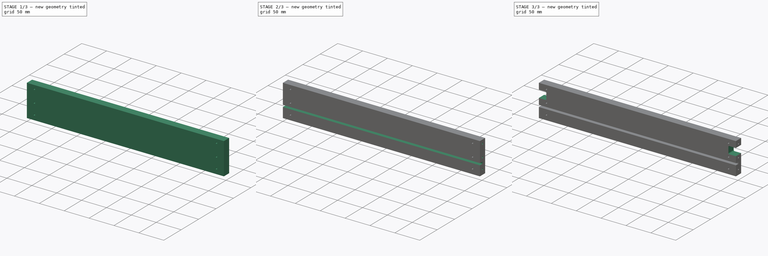
[diagram: build sequence overview — one tinted view per stage of 3, left to right]
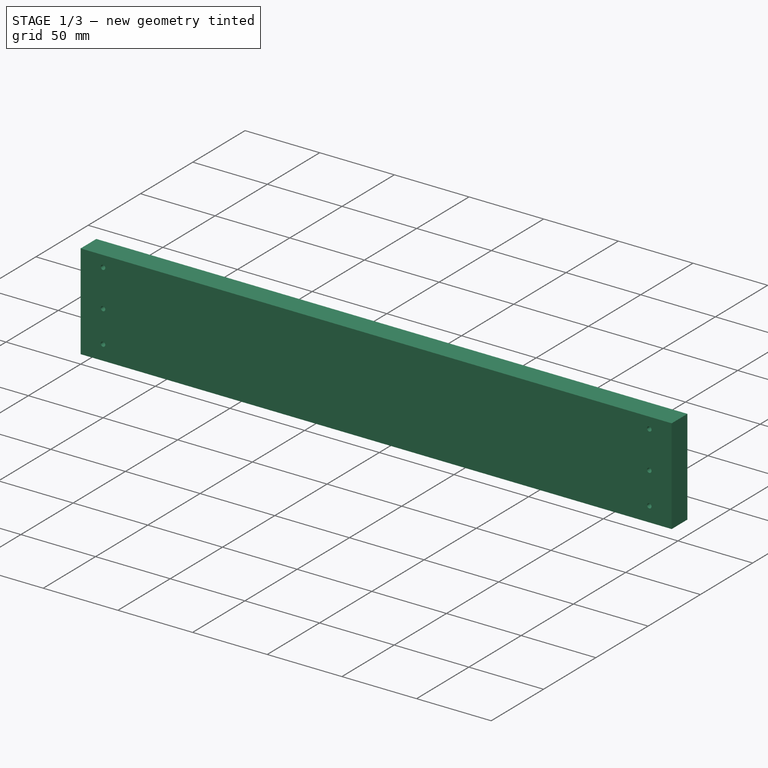
[diagram: stage 1 of 3 — iso view after this stage's code; geometry added in this stage tinted green]
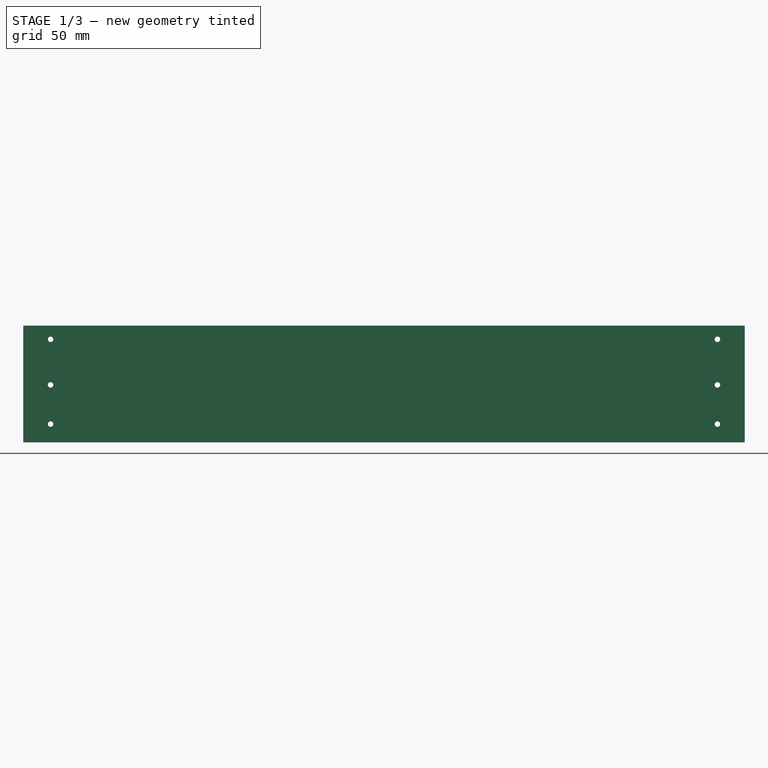
[diagram: stage 1 of 3 — front view after this stage's code; geometry added in this stage tinted green]
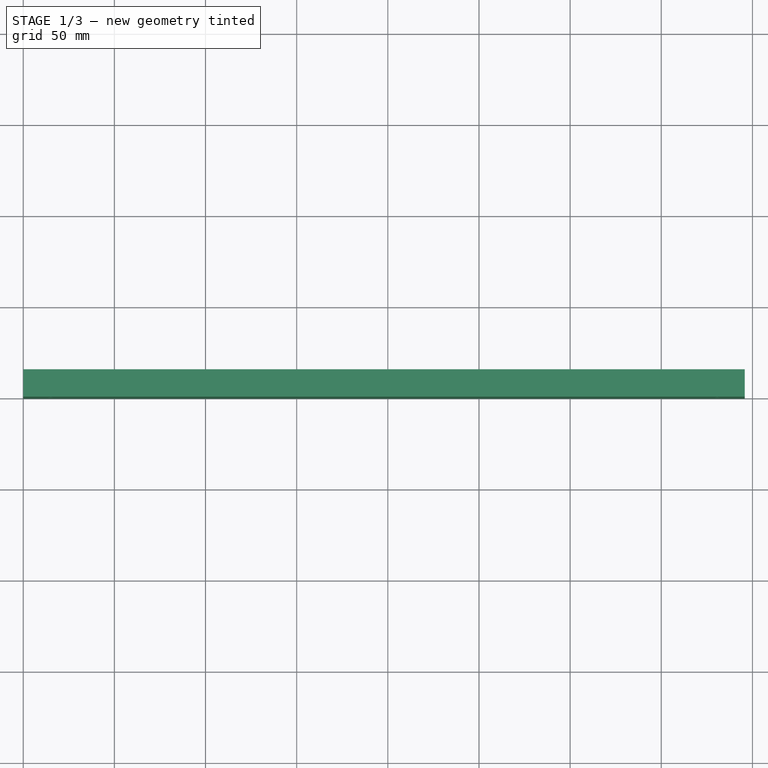
[diagram: stage 1 of 3 — top view after this stage's code; geometry added in this stage tinted green]
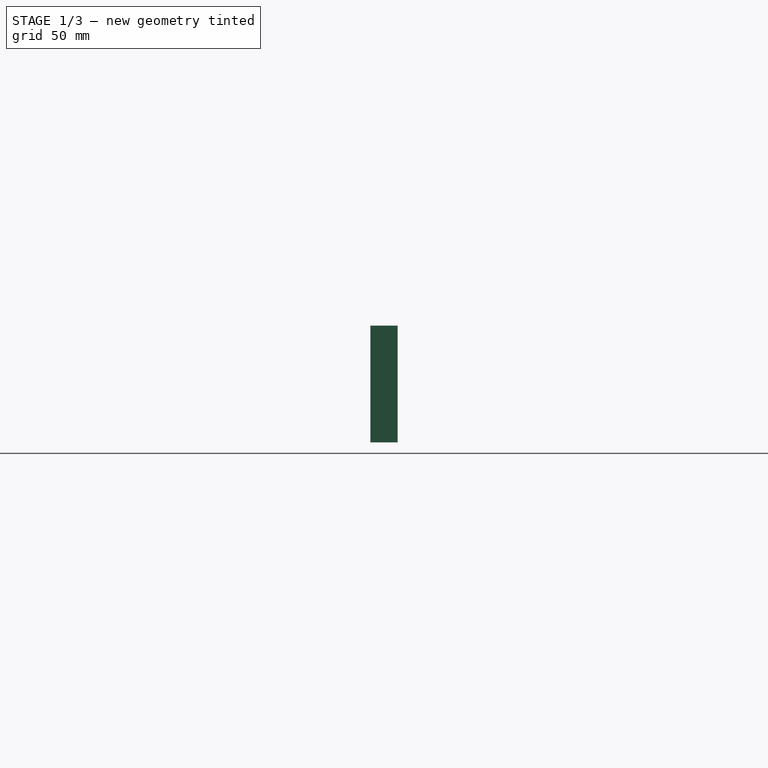
[diagram: stage 1 of 3 — right view after this stage's code; geometry added in this stage tinted green]
FCSTD DOCUMENT  (FreeCAD 0.19R24291 (Git))
Label: BackWall
License: All rights reserved
LicenseURL: http://en.wikipedia.org/wiki/All_rights_reserved
objects: Sketcher::SketchObject×6, PartDesign::Pocket×5, PartDesign::CoordinateSystem×2, PartDesign::Pad×1, App::FeaturePython×1, PartDesign::Body×1, App::Part×1
note: 21 computed .brp shape members not serialized (recipe doc carries the construction recipe); baked Part::Feature solids carry a one-line shape summary decoded from their .brp

FEATURE [PartDesign::CoordinateSystem] LCS_0
  AttacherType = Attacher::AttachEngine3D
  MapMode = 2
  Support = -> [X_Axis]
FEATURE [PartDesign::CoordinateSystem] LCS_0001
  AttacherType = Attacher::AttachEngine3D
  MapMode = 2
  Support = -> [X_Axis001]
FEATURE [Sketcher::SketchObject] Sketch
  FullyConstrained = true
  MapMode = 5
  Placement = pos=(0,0,0) rot=(1,0,0;1.5708rad)
  Support = -> [XZ_Plane001]
  expr: Constraints[9] = <<Attributes>>.BackWidth
  expr: Constraints[10] = <<Attributes>>.DrawerHeight_DH
  sketch-geometry (4):
    g0: LineSegment StartX=0 StartY=0 StartZ=0 EndX=395.8 EndY=0 EndZ=0
    g1: LineSegment StartX=395.8 StartY=0 StartZ=0 EndX=395.8 EndY=64 EndZ=0
    g2: LineSegment StartX=395.8 StartY=64 StartZ=0 EndX=0 EndY=64 EndZ=0
    g3: LineSegment StartX=0 StartY=64 StartZ=0 EndX=0 EndY=0 EndZ=0
  constraints (11):
    c: Coincident(g0,g1)
    c: Coincident(g1,g2)
    c: Coincident(g2,g3)
    c: Coincident(g3,g0)
    c: Horizontal(g0)
    c: Horizontal(g2)
    c: Vertical(g1)
    c: Vertical(g3)
    c: Coincident(g0,g-1)
    c: Distance(g2) = 395.8
    c: Distance(g3) = 64
FEATURE [PartDesign::Pad] Pad
  Direction = (1,1,1)
  Length = 15
  Length2 = 100
  Placement = pos=(0,0,0) rot=(1,0,0;1.5708rad)
  Profile = -> Sketch
  Reversed = true
  Type = 0
  expr: Length = <<Attributes>>.WallThickness_WT
FEATURE [Sketcher::SketchObject] Sketch001
  FullyConstrained = true
  MapMode = 5
  Placement = pos=(0,-1e-16,0) rot=(1,0,0;1.5708rad)
  Support = -> [Pad]
  expr: Constraints[2] = <<Attributes>>.WallThickness_WT * 1
  expr: Constraints[3] = <<Attributes>>.BackWidth - <<Attributes>>.WallThickness_WT * 2
  expr: Constraints[28] = <<Attributes>>.Bottom_Space_Height / 2
  expr: Constraints[21] = <<Attributes>>.ScrewPreWhole / 2
  expr: Constraints[14] = <<Attributes>>.DrawerHeight_DH - <<Attributes>>.WallThickness_WT - <<Attributes>>.Bottom_Space_Height - <<Attributes>>.Bottom_Height_BH
  expr: Constraints[33] = <<Attributes>>.DrawerHeight_DH - <<Attributes>>.WallThickness_WT / 2
  sketch-geometry (13):
    g0: LineSegment StartX=15 StartY=56.5 StartZ=0 EndX=380.8 EndY=56.5 EndZ=0
    g1: LineSegment StartX=380.8 StartY=31.5 StartZ=0 EndX=15 EndY=31.5 EndZ=0
    g2: LineSegment StartX=15 StartY=31.5 StartZ=0 EndX=15 EndY=44 EndZ=0
    g3: LineSegment StartX=15 StartY=44 StartZ=0 EndX=15 EndY=56.5 EndZ=0
    g4: LineSegment StartX=380.8 StartY=31.5 StartZ=0 EndX=380.8 EndY=44 EndZ=0
    g5: LineSegment StartX=380.8 StartY=44 StartZ=0 EndX=380.8 EndY=56.5 EndZ=0
    g6: Circle CenterX=15 CenterY=56.5 CenterZ=0 NormalX=0 NormalY=0 NormalZ=1 AngleXU=0 Radius=1.5
    g7: Circle CenterX=15 CenterY=31.5 CenterZ=0 NormalX=0 NormalY=0 NormalZ=1 AngleXU=0 Radius=1.5
    g8: Circle CenterX=380.8 CenterY=31.5 CenterZ=0 NormalX=0 NormalY=0 NormalZ=1 AngleXU=0 Radius=1.5
    g9: Circle CenterX=380.8 CenterY=56.5 CenterZ=0 NormalX=0 NormalY=0 NormalZ=1 AngleXU=0 Radius=1.5
    g10: LineSegment StartX=15 StartY=10 StartZ=0 EndX=380.8 EndY=10 EndZ=0
    g11: Circle CenterX=15 CenterY=10 CenterZ=0 NormalX=0 NormalY=0 NormalZ=1 AngleXU=0 Radius=1.5
    g12: Circle CenterX=380.8 CenterY=10 CenterZ=0 NormalX=0 NormalY=0 NormalZ=1 AngleXU=0 Radius=1.5
  constraints (34):
    c: Horizontal(g0)
    c: Horizontal(g1)
    c: DistanceX(g-1,g1) = 15
    c: Distance(g0) = 365.8
    c: Coincident(g1,g2)
    c: Vertical(g2)
    c: Coincident(g3,g0)
    c: Vertical(g3)
    c: Equal(g2,g3)
    c: Coincident(g1,g4)
    c: Vertical(g4)
    c: Coincident(g5,g0)
    c: Vertical(g5)
    c: Equal(g5,g4)
    c: Distance(g1,g0) = 25
    c: Coincident(g6,g0)
    c: Coincident(g7,g1)
    c: Coincident(g8,g1)
    c: Coincident(g9,g0)
    c: Equal(g9,g8)
    c: Equal(g8,g6)
    c: Radius(g6) = 1.5
    c: Coincident(g3,g2)
    c: Coincident(g4,g5)
    c: Equal(g7,g6)
    c: Horizontal(g10)
    c: Vertical(g7,g10)
    c: Equal(g10,g1)
    c: DistanceY(g-1,g10) = 10
    c: Coincident(g11,g10)
    c: Coincident(g12,g10)
    c: Equal(g8,g12)
    c: Equal(g12,g11)
    c: DistanceY(g-1,g6) = 56.5
FEATURE [PartDesign::Pocket] Pocket
  BaseFeature = -> Pad
  Length = 5
  Length2 = 100
  Placement = pos=(0,0,0) rot=(1,0,0;1.5708rad)
  Profile = -> Sketch001
  Type = 1
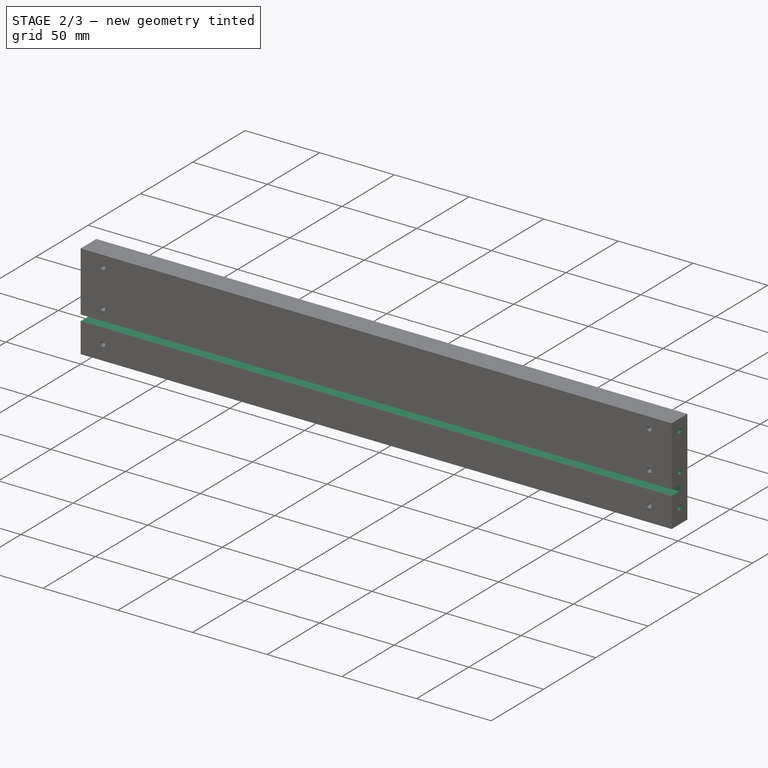
[diagram: stage 2 of 3 — iso view after this stage's code; geometry added in this stage tinted green]
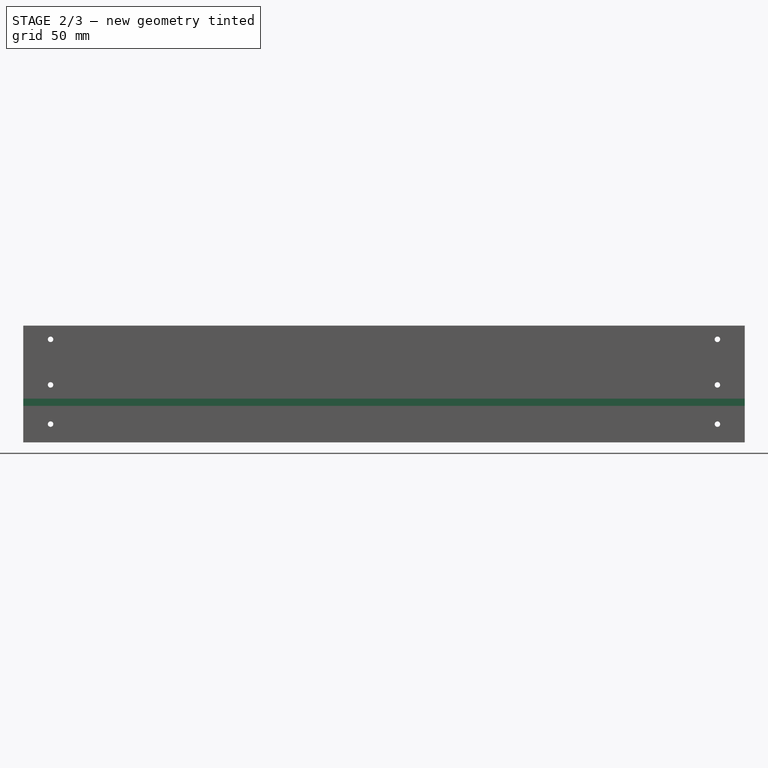
[diagram: stage 2 of 3 — front view after this stage's code; geometry added in this stage tinted green]
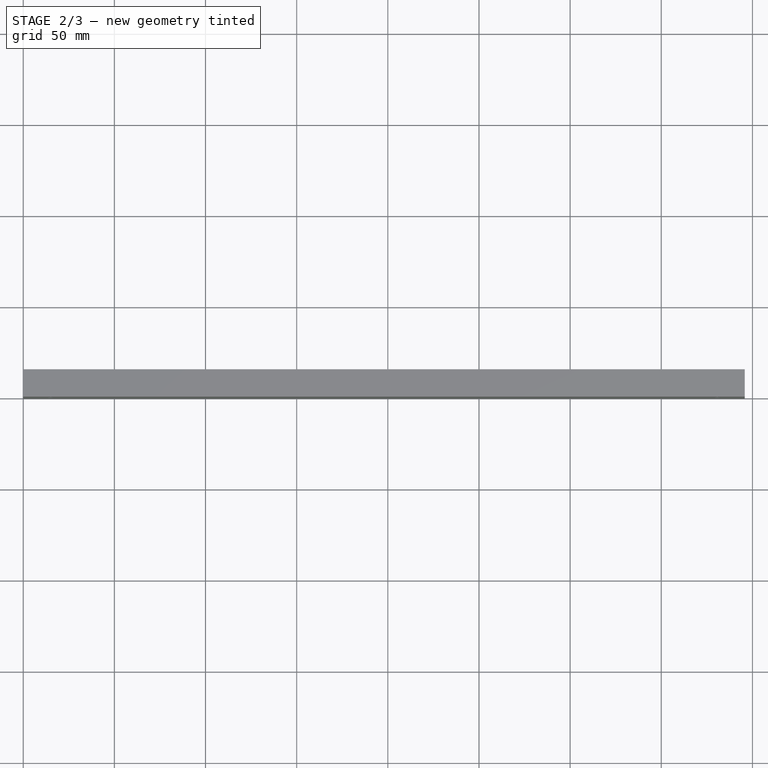
[diagram: stage 2 of 3 — top view after this stage's code; geometry added in this stage tinted green]
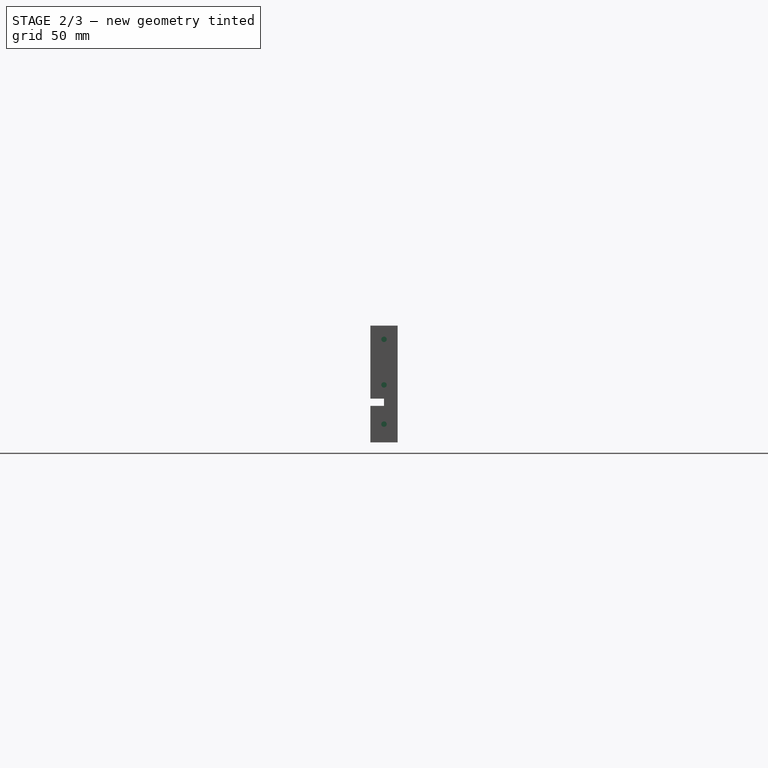
[diagram: stage 2 of 3 — right view after this stage's code; geometry added in this stage tinted green]
FEATURE [Sketcher::SketchObject] Sketch002
  FullyConstrained = true
  MapMode = 5
  Placement = pos=(0,-1e-16,0) rot=(1,0,0;1.5708rad)
  Support = -> [Pocket]
  expr: Constraints[9] = <<Attributes>>.BackWidth
  expr: Constraints[10] = <<Attributes>>.Bottom_Space_Height
  expr: Constraints[11] = <<Attributes>>.Bottom_Height_BH
  sketch-geometry (4):
    g0: LineSegment StartX=0 StartY=20 StartZ=0 EndX=395.8 EndY=20 EndZ=0
    g1: LineSegment StartX=395.8 StartY=20 StartZ=0 EndX=395.8 EndY=24 EndZ=0
    g2: LineSegment StartX=395.8 StartY=24 StartZ=0 EndX=0 EndY=24 EndZ=0
    g3: LineSegment StartX=0 StartY=24 StartZ=0 EndX=0 EndY=20 EndZ=0
  constraints (12):
    c: Coincident(g0,g1)
    c: Coincident(g1,g2)
    c: Coincident(g2,g3)
    c: Coincident(g3,g0)
    c: Horizontal(g0)
    c: Horizontal(g2)
    c: Vertical(g1)
    c: Vertical(g3)
    c: PointOnObject(g0,g-2)
    c: Distance(g2) = 395.8
    c: DistanceY(g-1,g0) = 20
    c: Distance(g3) = 4
FEATURE [PartDesign::Pocket] Pocket001
  BaseFeature = -> Pocket
  Length = 7.5
  Length2 = 100
  Placement = pos=(0,0,0) rot=(1,0,0;1.5708rad)
  Profile = -> Sketch002
  Type = 0
  expr: Length = <<Attributes>>.WallThickness_WT / 2
FEATURE [Sketcher::SketchObject] Sketch003
  FullyConstrained = true
  MapMode = 5
  Placement = pos=(395.8,0,0) rot=(0.707107,0,0.707107;3.14159rad)
  Support = -> [Pocket001]
  expr: Constraints[3] = <<Attributes>>.WallThickness_WT / 2
  expr: Constraints[4] = <<Attributes>>.DrawerHeight_DH - <<Attributes>>.WallThickness_WT / 2
  expr: Constraints[5] = <<Attributes>>.Bottom_Space_Height / 2
  expr: Constraints[6] = <<Attributes>>.DrawerHeight_DH - <<Attributes>>.WallThickness_WT - <<Attributes>>.Bottom_Space_Height - <<Attributes>>.Bottom_Height_BH
  expr: Constraints[12] = <<Attributes>>.ScrewPreWhole / 2
  sketch-geometry (5):
    g0: LineSegment StartX=10 StartY=-7.5 StartZ=0 EndX=31.5 EndY=-7.5 EndZ=0
    g1: LineSegment StartX=31.5 StartY=-7.5 StartZ=0 EndX=56.5 EndY=-7.5 EndZ=0
    g2: Circle CenterX=10 CenterY=-7.5 CenterZ=0 NormalX=0 NormalY=0 NormalZ=1 AngleXU=0 Radius=1.5
    g3: Circle CenterX=31.5 CenterY=-7.5 CenterZ=0 NormalX=0 NormalY=0 NormalZ=1 AngleXU=0 Radius=1.5
    g4: Circle CenterX=56.5 CenterY=-7.5 CenterZ=0 NormalX=0 NormalY=0 NormalZ=1 AngleXU=0 Radius=1.5
  constraints (13):
    c: Horizontal(g0)
    c: Coincident(g0,g1)
    c: Horizontal(g1)
    c: DistanceY(g0,g-1) = 7.5
    c: DistanceX(g-1,g1) = 56.5
    c: DistanceX(g-1,g0) = 10
    c: Distance(g1) = 25
    c: Coincident(g2,g0)
    c: Coincident(g3,g0)
    c: Coincident(g4,g1)
    c: Equal(g2,g3)
    c: Equal(g3,g4)
    c: Radius(g2) = 1.5
FEATURE [PartDesign::Pocket] Pocket002
  BaseFeature = -> Pocket001
  Length = 20
  Length2 = 100
  Placement = pos=(0,0,0) rot=(1,0,0;1.5708rad)
  Profile = -> Sketch003
  Type = 0
  expr: Length = <<Attributes>>.ScrewPreWholeDepth
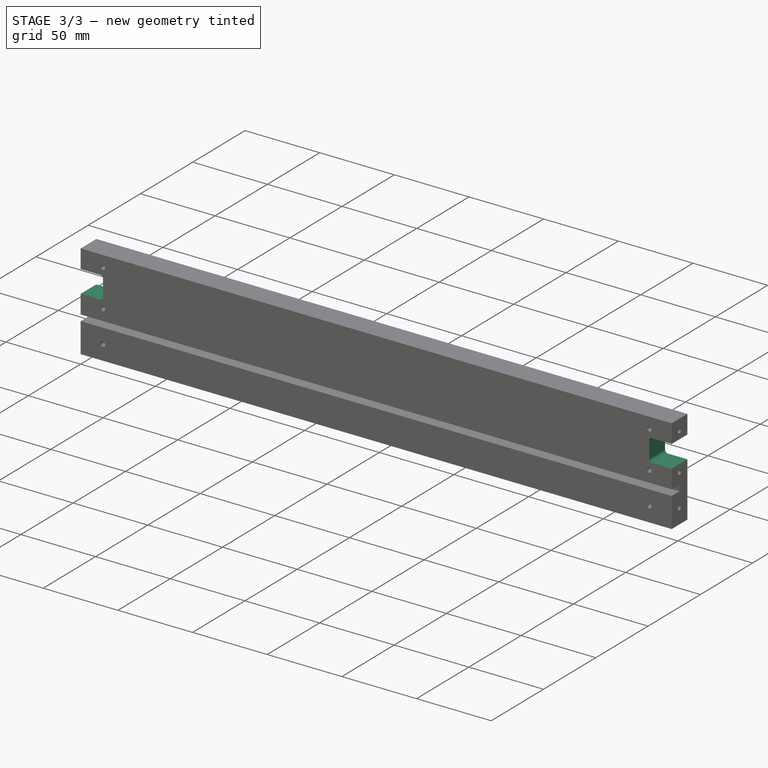
[diagram: stage 3 of 3 — iso view after this stage's code; geometry added in this stage tinted green]
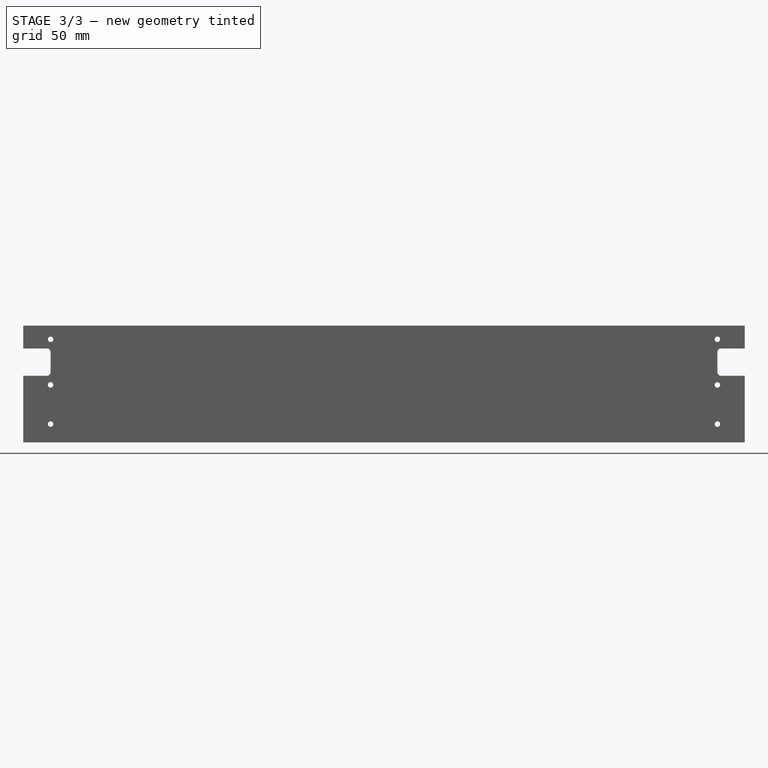
[diagram: stage 3 of 3 — front view after this stage's code; geometry added in this stage tinted green]
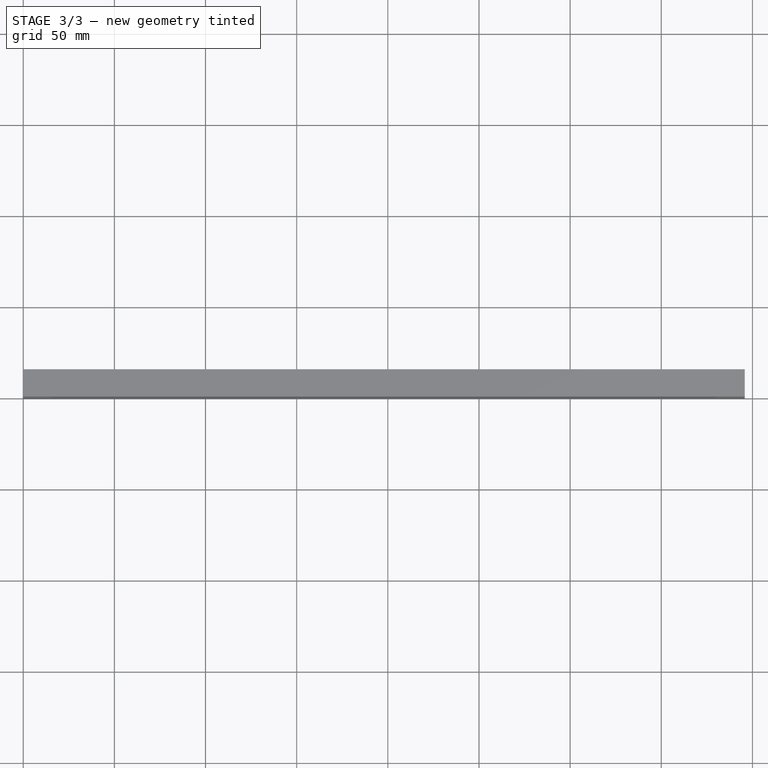
[diagram: stage 3 of 3 — top view after this stage's code; geometry added in this stage tinted green]
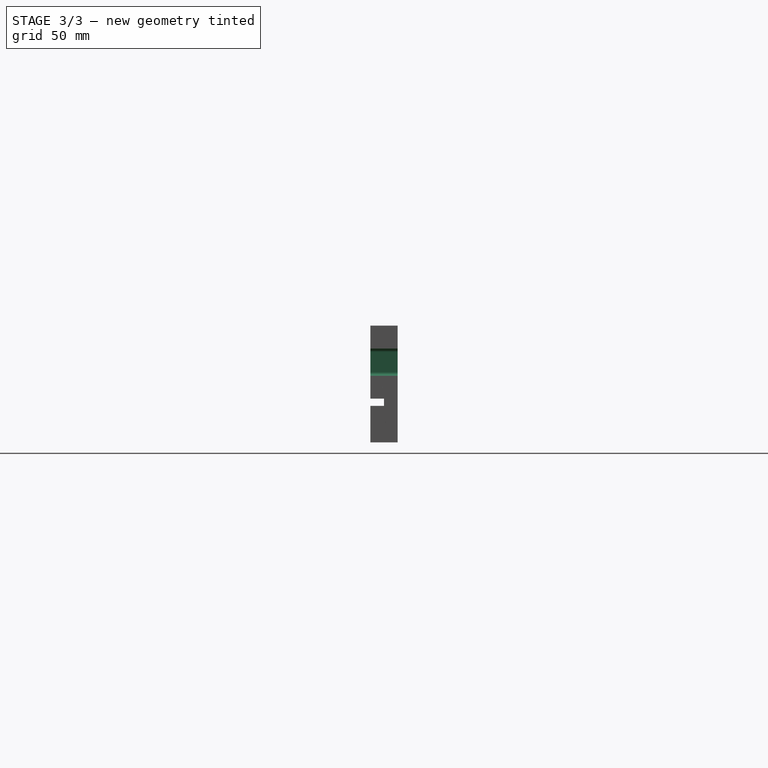
[diagram: stage 3 of 3 — right view after this stage's code; geometry added in this stage tinted green]
FEATURE [Sketcher::SketchObject] Sketch004
  FullyConstrained = true
  MapMode = 5
  Placement = pos=(0,0,0) rot=(0.707107,0,-0.707107;3.14159rad)
  Support = -> [Pocket002]
  expr: Constraints[3] = <<Attributes>>.WallThickness_WT / 2
  expr: Constraints[4] = <<Attributes>>.DrawerHeight_DH - <<Attributes>>.WallThickness_WT / 2
  expr: Constraints[5] = <<Attributes>>.DrawerHeight_DH - <<Attributes>>.WallThickness_WT - <<Attributes>>.Bottom_Space_Height - <<Attributes>>.Bottom_Height_BH
  expr: Constraints[6] = <<Attributes>>.Bottom_Space_Height / 2
  expr: Constraints[12] = <<Attributes>>.ScrewPreWhole / 2
  sketch-geometry (5):
    g0: LineSegment StartX=-10 StartY=-7.5 StartZ=0 EndX=-31.5 EndY=-7.5 EndZ=0
    g1: LineSegment StartX=-31.5 StartY=-7.5 StartZ=0 EndX=-56.5 EndY=-7.5 EndZ=0
    g2: Circle CenterX=-56.5 CenterY=-7.5 CenterZ=0 NormalX=0 NormalY=0 NormalZ=1 AngleXU=0 Radius=1.5
    g3: Circle CenterX=-31.5 CenterY=-7.5 CenterZ=0 NormalX=0 NormalY=0 NormalZ=1 AngleXU=0 Radius=1.5
    g4: Circle CenterX=-10 CenterY=-7.5 CenterZ=0 NormalX=0 NormalY=0 NormalZ=1 AngleXU=0 Radius=1.5
  constraints (13):
    c: Horizontal(g0)
    c: Coincident(g0,g1)
    c: Horizontal(g1)
    c: DistanceY(g0,g-1) = 7.5
    c: DistanceX(g1,g-1) = 56.5
    c: Distance(g1) = 25
    c: DistanceX(g0,g-1) = 10
    c: Coincident(g2,g1)
    c: Coincident(g3,g0)
    c: Coincident(g4,g0)
    c: Equal(g4,g3)
    c: Equal(g3,g2)
    c: Radius(g4) = 1.5
FEATURE [PartDesign::Pocket] Pocket003
  BaseFeature = -> Pocket002
  Length = 20
  Length2 = 100
  Placement = pos=(0,0,0) rot=(1,0,0;1.5708rad)
  Profile = -> Sketch004
  Type = 0
  expr: Length = <<Attributes>>.ScrewPreWholeDepth
FEATURE [Sketcher::SketchObject] Sketch005
  FullyConstrained = true
  MapMode = 5
  Placement = pos=(0,15,3.3e-15) rot=(-1,0,0;1.5708rad)
  Support = -> [Pocket003]
  expr: Constraints[42] = <<Attributes>>.CableChannelRadius
  expr: Constraints[41] = <<Attributes>>.DrawerHeight_DH - <<Attributes>>.WallThickness_WT / 2 - (<<Attributes>>.DrawerHeight_DH - <<Attributes>>.WallThickness_WT - <<Attributes>>.Bottom_Space_Height - <<Attributes>>.Bottom_Height_BH) / 2
  expr: Constraints[40] = <<Attributes>>.CableChannelHight
  expr: Constraints[10] = <<Attributes>>.DrawerWidth_DW - <<Attributes>>.WallThickness_WT
  expr: Constraints[30] = <<Attributes>>.WallThickness_WT
  sketch-geometry (17):
    g0: LineSegment StartX=0 StartY=-51.5 StartZ=0 EndX=13 EndY=-51.5 EndZ=0
    g1: LineSegment StartX=15 StartY=-49.5 StartZ=0 EndX=15 EndY=-38.5 EndZ=0
    g2: LineSegment StartX=13 StartY=-36.5 StartZ=0 EndX=0 EndY=-36.5 EndZ=0
    g3: LineSegment StartX=0 StartY=-36.5 StartZ=0 EndX=0 EndY=-51.5 EndZ=0
    g4: LineSegment StartX=395.8 StartY=-51.5 StartZ=0 EndX=382.8 EndY=-51.5 EndZ=0
    g5: LineSegment StartX=380.8 StartY=-49.5 StartZ=0 EndX=380.8 EndY=-38.5 EndZ=0
    g6: LineSegment StartX=382.8 StartY=-36.5 StartZ=0 EndX=395.8 EndY=-36.5 EndZ=0
    g7: ArcOfCircle CenterX=13 CenterY=-49.5 CenterZ=0 NormalX=0 NormalY=0 NormalZ=1 AngleXU=0 Radius=2 StartAngle=4.71239 EndAngle=6.28319
    g8: GeomPoint X=15 Y=-51.5 Z=0
    g9: ArcOfCircle CenterX=13 CenterY=-38.5 CenterZ=0 NormalX=0 NormalY=0 NormalZ=1 AngleXU=0 Radius=2 StartAngle=-9e-16 EndAngle=1.5708
    g10: GeomPoint X=15 Y=-36.5 Z=0
    g11: ArcOfCircle CenterX=382.8 CenterY=-49.5 CenterZ=0 NormalX=0 NormalY=0 NormalZ=1 AngleXU=0 Radius=2 StartAngle=3.14159 EndAngle=4.71239
    g12: GeomPoint X=380.8 Y=-51.5 Z=0
    g13: ArcOfCircle CenterX=382.8 CenterY=-38.5 CenterZ=0 NormalX=0 NormalY=0 NormalZ=1 AngleXU=0 Radius=2 StartAngle=1.5708 EndAngle=3.14159
    g14: GeomPoint X=380.8 Y=-36.5 Z=0
    g15: LineSegment StartX=395.8 StartY=-36.5 StartZ=0 EndX=395.8 EndY=-44 EndZ=0
    g16: LineSegment StartX=395.8 StartY=-44 StartZ=0 EndX=395.8 EndY=-51.5 EndZ=0
  constraints (43):
    c: Coincident(g2,g3)
    c: Coincident(g3,g0)
    c: Horizontal(g0)
    c: Horizontal(g2)
    c: Vertical(g1)
    c: Vertical(g3)
    c: PointOnObject(g0,g-2)
    c: Horizontal(g4)
    c: Horizontal(g6)
    c: Vertical(g5)
    c: DistanceX(g-1,g6) = 395.8
    c: PointOnObject(g8,g0)
    c: PointOnObject(g8,g1)
    c: Tangent(g0,g7) = -1.5708
    c: Tangent(g1,g7) = -1.5708
    c: PointOnObject(g10,g1)
    c: PointOnObject(g10,g2)
    c: Tangent(g1,g9) = -1.5708
    c: Tangent(g2,g9) = -1.5708
    c: PointOnObject(g12,g4)
    c: PointOnObject(g12,g5)
    c: Tangent(g4,g11) = 1.5708
    c: Tangent(g5,g11) = 1.5708
    c: PointOnObject(g14,g5)
    c: PointOnObject(g14,g6)
    c: Tangent(g5,g13) = 1.5708
    c: Tangent(g6,g13) = 1.5708
    c: Equal(g13,g11)
    c: Equal(g11,g7)
    c: Equal(g7,g9)
    c: DistanceX(g14,g6) = 15
    c: Equal(g2,g6)
    c: Horizontal(g8,g12)
    c: Coincident(g6,g15)
    c: Vertical(g15)
    c: Coincident(g15,g16)
    c: Coincident(g16,g4)
    c: Vertical(g16)
    c: Equal(g15,g16)
    c: Horizontal(g2,g6)
    c: DistanceY(g4,g6) = 15
    c: DistanceY(g15,g-1) = 44
    c: Radius(g13) = 2
FEATURE [App::FeaturePython] PropertyBag  label="Attributes"  # WARN: FeaturePython — macro-defined, semantics opaque (R4)
  BackWidth = 395.8
  Back_Space = 100
  BottomDepth = 365.8
  BottomWidth = 365.8
  Bottom_Height_BH = 4
  Bottom_Space_Height = 20
  Box_Tolerance = 0.2
  Boxes_Depth = 5
  Boxes_Height = 40
  Boxes_Width = 5
  CableChannelHight = 15
  CableChannelRadius = 2
  CustomPropertyGroups = shape | attributes
  DrawerDepth_DD = 465.8
  DrawerHeight_DH = 64
  DrawerWidth_DW = 410.8
  InnerWallDepth = 358.3
  LogicBoardScrewHeadDiameter = 6
  LogicBoardScrewHeadHeight = 3
  LogicBoardStandoffHoleDiameter = 3
  LogicBoardStandoffHoleSideSpace = 6
  LogicSpaceCornerRadius = 2
  LogicSpaceWidth = 100
  ScrewPreWhole = 3
  ScrewPreWholeDepth = 20
  SideLengt = 20
  WallThickness_WT = 15
  expr: InnerWallDepth = Boxes_Depth * 70mm + WallThickness_WT * 0.5 + Box_Tolerance * (Boxes_Width - 1)
  expr: DrawerDepth_DD = Boxes_Depth * 70mm + WallThickness_WT + Back_Space + Box_Tolerance * (Boxes_Width - 1)
  expr: BottomWidth = Boxes_Width * 70mm + WallThickness_WT + Box_Tolerance * (Boxes_Width - 1)
  expr: DrawerWidth_DW = Boxes_Width * 70mm + WallThickness_WT * 4 + Box_Tolerance * (Boxes_Width - 1)
  expr: BackWidth = DrawerWidth_DW - WallThickness_WT
  expr: DrawerHeight_DH = Boxes_Height + Bottom_Height_BH + Bottom_Space_Height
  expr: BottomDepth = Boxes_Depth * 70mm + WallThickness_WT + Box_Tolerance * (Boxes_Width - 1)
FEATURE [PartDesign::Pocket] Pocket004
  BaseFeature = -> Pocket003
  Length = 5
  Length2 = 100
  Placement = pos=(0,0,0) rot=(1,0,0;1.5708rad)
  Profile = -> Sketch005
  Type = 1
FEATURE [PartDesign::Body] BackWall001
  Group = -> [LCS_0001,Sketch,Pad,Sketch001,Pocket,Sketch002,Pocket001,Sketch003,Pocket002,Sketch004,Pocket003,Sketch005,Pocket004]
  Origin = -> Origin001
  Tip = -> Pocket004
FEATURE [App::Part] BackWall
  Group = -> [LCS_0,BackWall001,PropertyBag]
  Origin = -> Origin
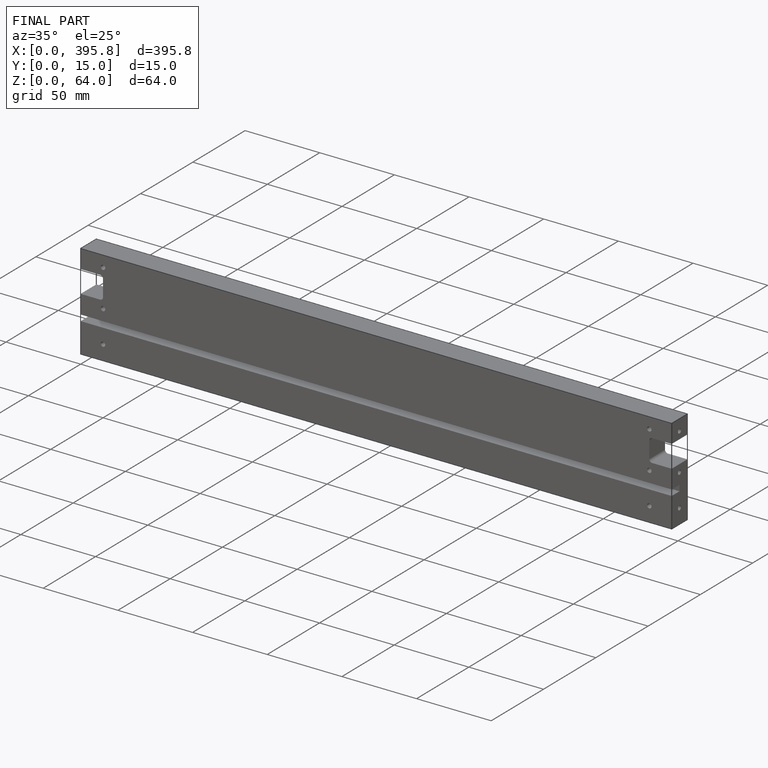
[diagram: finished part — iso view with bounding-box wireframe]
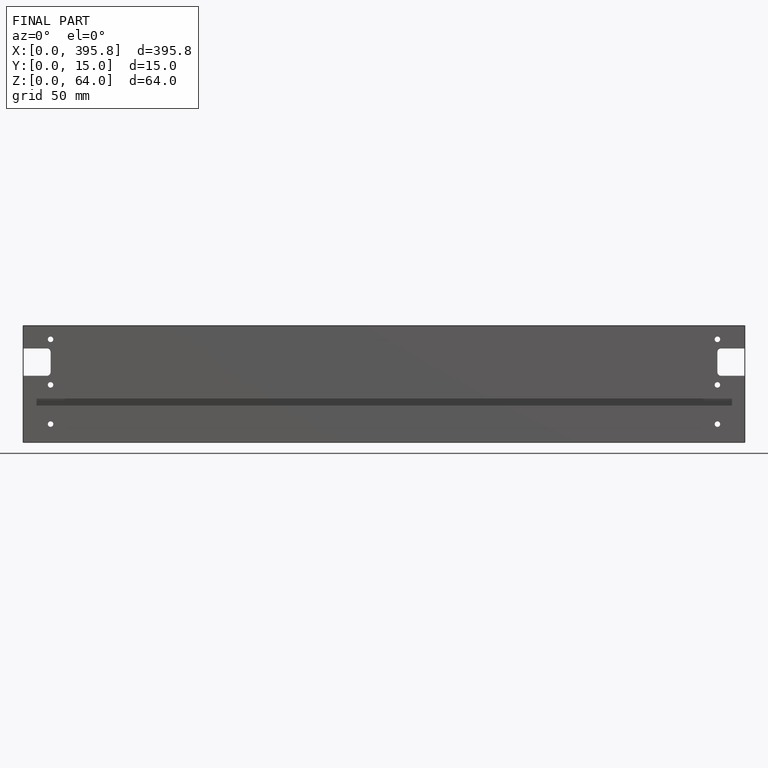
[diagram: finished part — front view with bounding-box wireframe]
